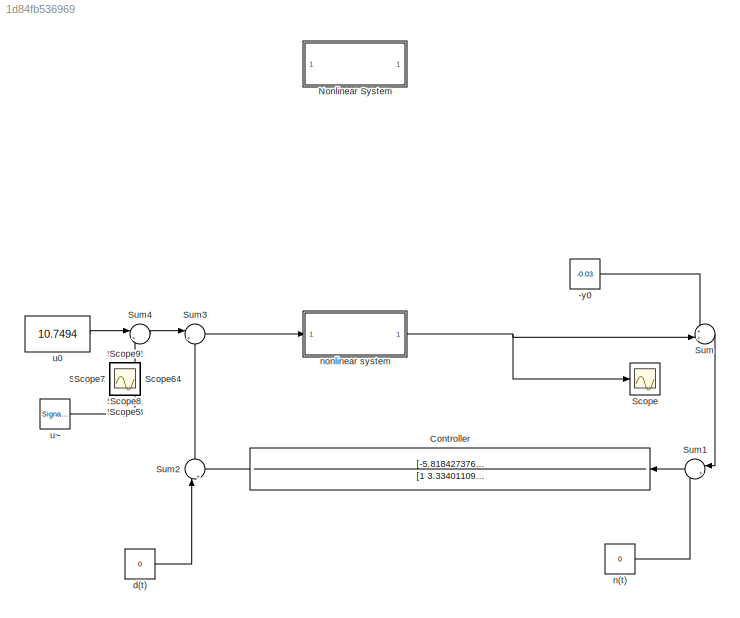
MODEL slx_1d84fb536969
KIND model
CONFIG AbsTol = auto
CONFIG FixedStep = auto
CONFIG MaxStep = auto
CONFIG MinStep = auto
CONFIG RelTol = 1e-3
CONFIG SampleTimeConstraint = Unconstrained
CONFIG Solver = VariableStepAuto
CONFIG SolverMode = Auto
CONFIG SolverName = VariableStepAuto
CONFIG StartTime = 0.0
CONFIG StopTime = 10
BLOCK [Constant] -y0
  Value = -0.03
BLOCK [TransferFcn] Controller
  Denominator = [1 3.334011090573013e+02 5.594060635982519e+04]
  Numerator = [-5.818427376111721e+04 -4.416620014332136e+06 -8.995846425756064e+07]
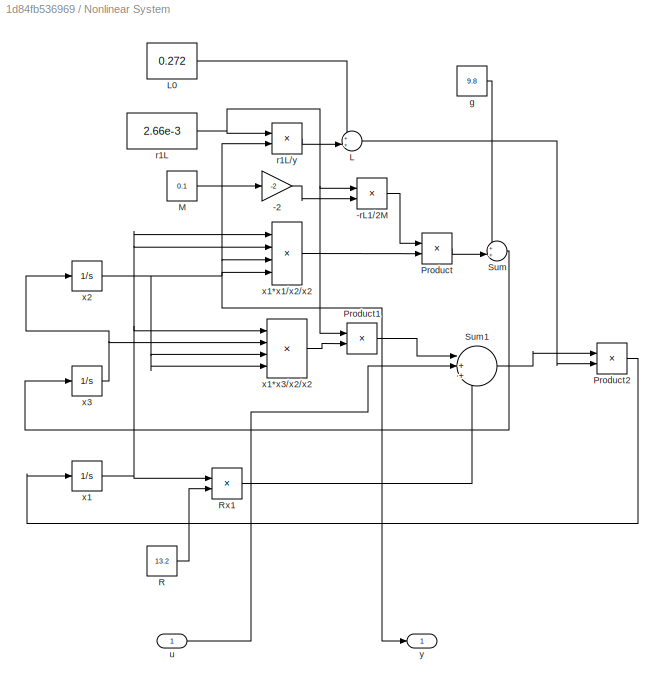
BLOCK [SubSystem] Nonlinear System
  Ports = [1, 1]
  RequestExecContextInheritance = off
  Variant = off
BLOCK [Gain] Nonlinear System/-2
  Gain = -2
  OutDataTypeStr = Inherit: Inherit via internal rule
  ParamDataTypeStr = Inherit: Inherit via internal rule
  SaturateOnIntegerOverflow = off
BLOCK [Product] Nonlinear System/-rL1//2M
  InputSameDT = off
  OutDataTypeStr = Inherit: Inherit via internal rule
  Ports = [2, 1]
  RndMeth = Floor
  SaturateOnIntegerOverflow = off
BLOCK [Sum] Nonlinear System/L
  IconShape = round
  InputSameDT = off
  Inputs = ++|
  OutDataTypeStr = Inherit: Inherit via internal rule
  Ports = [2, 1]
  SaturateOnIntegerOverflow = off
BLOCK [Constant] Nonlinear System/L0
  Value = 0.272
BLOCK [Constant] Nonlinear System/M
  Value = 0.1
BLOCK [Product] Nonlinear System/Product
  InputSameDT = off
  OutDataTypeStr = Inherit: Inherit via internal rule
  Ports = [2, 1]
  RndMeth = Floor
  SaturateOnIntegerOverflow = off
BLOCK [Product] Nonlinear System/Product1
  InputSameDT = off
  OutDataTypeStr = Inherit: Inherit via internal rule
  Ports = [2, 1]
  RndMeth = Floor
  SaturateOnIntegerOverflow = off
BLOCK [Product] Nonlinear System/Product2
  InputSameDT = off
  Inputs = */
  OutDataTypeStr = Inherit: Inherit via internal rule
  Ports = [2, 1]
  RndMeth = Floor
  SaturateOnIntegerOverflow = off
BLOCK [Constant] Nonlinear System/R
  Value = 13.2
BLOCK [Product] Nonlinear System/Rx1
  InputSameDT = off
  OutDataTypeStr = Inherit: Inherit via internal rule
  Ports = [2, 1]
  RndMeth = Floor
  SaturateOnIntegerOverflow = off
BLOCK [Sum] Nonlinear System/Sum
  IconShape = round
  InputSameDT = off
  Inputs = ++|
  OutDataTypeStr = Inherit: Inherit via internal rule
  Ports = [2, 1]
  SaturateOnIntegerOverflow = off
BLOCK [Sum] Nonlinear System/Sum1
  IconShape = round
  InputSameDT = off
  Inputs = |++-
  OutDataTypeStr = Inherit: Inherit via internal rule
  Ports = [3, 1]
  SaturateOnIntegerOverflow = off
BLOCK [Constant] Nonlinear System/g
  Value = 9.8
BLOCK [Constant] Nonlinear System/r1L
  Value = 2.66e-3
BLOCK [Product] Nonlinear System/r1L//y
  InputSameDT = off
  Inputs = */
  OutDataTypeStr = Inherit: Inherit via internal rule
  Ports = [2, 1]
  RndMeth = Floor
  SaturateOnIntegerOverflow = off
BLOCK [Inport] Nonlinear System/u
  IconDisplay = Port number
BLOCK [Integrator] Nonlinear System/x1
  InitialCondition = 0.8143
  Ports = [1, 1]
BLOCK [Product] Nonlinear System/x1*x1//x2//x2
  InputSameDT = off
  Inputs = **//
  OutDataTypeStr = Inherit: Inherit via internal rule
  Ports = [4, 1]
  RndMeth = Floor
  SaturateOnIntegerOverflow = off
BLOCK [Product] Nonlinear System/x1*x3//x2//x2
  InputSameDT = off
  Inputs = **//
  OutDataTypeStr = Inherit: Inherit via internal rule
  Ports = [4, 1]
  RndMeth = Floor
  SaturateOnIntegerOverflow = off
BLOCK [Integrator] Nonlinear System/x2
  InitialCondition = 0.0300
  Ports = [1, 1]
BLOCK [Integrator] Nonlinear System/x3
  Ports = [1, 1]
BLOCK [Outport] Nonlinear System/y
  IconDisplay = Port number
BLOCK [Scope] Scope
  Ports = [1]
  ScopeSpecificationString = Simulink.scopes.TimeScopeBlockCfg('CurrentConfiguration', extmgr.ConfigurationSet(extmgr.Configuration('Core','General UI',true),extmgr.Configuration('Core','Source UI',true),extmgr.Configuration('Sources','WiredSimulink',true),extmgr.Configuration('Visuals','Time Domain',true,'SerializedDisplays',{struct('MinYLimReal','0.02599','MaxYLimReal','0.03378','YLabelReal','','MinYLimMag','0.02599','MaxYL...<+1411ch>
BLOCK [Scope] Scope1
  IOType = viewer
  Ports = []
  ScopeSpecificationString = Simulink.scopes.TimeScopeBlockCfg('CurrentConfiguration', extmgr.ConfigurationSet(extmgr.Configuration('Core','General UI',true),extmgr.Configuration('Core','Source UI',true),extmgr.Configuration('Sources','WiredSimulink',true,'DataLoggingVariableName','ScopeData1'),extmgr.Configuration('Visuals','Time Domain',true,'SerializedDisplays',{struct('MinYLimReal','-11.50808','MaxYLimReal','103.87275','Y...<+1427ch>
BLOCK [Scope] Scope10
  IOType = viewer
  Ports = []
  ScopeSpecificationString = Simulink.scopes.TimeScopeBlockCfg('CurrentConfiguration', extmgr.ConfigurationSet(extmgr.Configuration('Core','General UI',true),extmgr.Configuration('Core','Source UI',true),extmgr.Configuration('Sources','WiredSimulink',true,'DataLoggingVariableName','ScopeData7'),extmgr.Configuration('Visuals','Time Domain',true,'SerializedDisplays',{struct('MinYLimReal','0.26095','MaxYLimReal','0.37175','YLabe...<+1388ch>
BLOCK [Scope] Scope11
  IOType = viewer
  Ports = []
  ScopeSpecificationString = Simulink.scopes.TimeScopeBlockCfg('CurrentConfiguration', extmgr.ConfigurationSet(extmgr.Configuration('Core','General UI',true),extmgr.Configuration('Core','Source UI',true),extmgr.Configuration('Sources','WiredSimulink',true,'DataLoggingVariableName','ScopeData8'),extmgr.Configuration('Visuals','Time Domain',true,'SerializedDisplays',{struct('MinYLimReal','-76.53336','MaxYLimReal','688.80666','Y...<+1402ch>
BLOCK [Scope] Scope12
  IOType = viewer
  Ports = []
  ScopeSpecificationString = Simulink.scopes.TimeScopeBlockCfg('CurrentConfiguration', extmgr.ConfigurationSet(extmgr.Configuration('Core','General UI',true),extmgr.Configuration('Core','Source UI',true),extmgr.Configuration('Sources','WiredSimulink',true,'DataLoggingVariableName','ScopeData9'),extmgr.Configuration('Visuals','Time Domain',true,'SerializedDisplays',{struct('MinYLimReal','-0.32228','MaxYLimReal','1.65595','YLab...<+1411ch>
BLOCK [Scope] Scope13
  IOType = viewer
  Ports = []
  ScopeSpecificationString = Simulink.scopes.TimeScopeBlockCfg('CurrentConfiguration', extmgr.ConfigurationSet(extmgr.Configuration('Core','General UI',true),extmgr.Configuration('Core','Source UI',true),extmgr.Configuration('Sources','WiredSimulink',true,'DataLoggingVariableName','ScopeData10'),extmgr.Configuration('Visuals','Time Domain',true,'SerializedDisplays',{struct('MinYLimReal','-18701.75249','MaxYLimReal','168423.26...<+1425ch>
BLOCK [Scope] Scope14
  IOType = viewer
  Ports = []
  ScopeSpecificationString = Simulink.scopes.TimeScopeBlockCfg('CurrentConfiguration', extmgr.ConfigurationSet(extmgr.Configuration('Core','General UI',true),extmgr.Configuration('Core','Source UI',true),extmgr.Configuration('Sources','WiredSimulink',true,'DataLoggingVariableName','ScopeData11'),extmgr.Configuration('Visuals','Time Domain',true,'SerializedDisplays',{struct('MinYLimReal','-18617.38621','MaxYLimReal','167663.96...<+1425ch>
BLOCK [Scope] Scope2
  IOType = viewer
  Ports = []
  ScopeSpecificationString = Simulink.scopes.TimeScopeBlockCfg('CurrentConfiguration', extmgr.ConfigurationSet(extmgr.Configuration('Core','General UI',true),extmgr.Configuration('Core','Source UI',true),extmgr.Configuration('Sources','WiredSimulink',true,'DataLoggingVariableName','ScopeData2'),extmgr.Configuration('Visuals','Time Domain',true,'SerializedDisplays',{struct('MinYLimReal','-18701.75249','MaxYLimReal','168423.266...<+1393ch>
BLOCK [Scope] Scope3
  IOType = viewer
  Ports = []
  ScopeSpecificationString = Simulink.scopes.TimeScopeBlockCfg('CurrentConfiguration', extmgr.ConfigurationSet(extmgr.Configuration('Core','General UI',true),extmgr.Configuration('Core','Source UI',true),extmgr.Configuration('Sources','WiredSimulink',true,'DataLoggingVariableName','ScopeData3'),extmgr.Configuration('Visuals','Time Domain',true,'SerializedDisplays',{struct('MinYLimReal','-202.61211','MaxYLimReal','77.98079','Y...<+1381ch>
BLOCK [Scope] Scope4
  IOType = viewer
  Ports = []
  ScopeSpecificationString = Simulink.scopes.TimeScopeBlockCfg('CurrentConfiguration', extmgr.ConfigurationSet(extmgr.Configuration('Core','General UI',true),extmgr.Configuration('Core','Source UI',true),extmgr.Configuration('Sources','WiredSimulink',true,'DataLoggingVariableName','ScopeData1'),extmgr.Configuration('Visuals','Time Domain',true,'SerializedDisplays',{struct('MinYLimReal','-0.02273','MaxYLimReal','0.02797','YLab...<+1436ch>
BLOCK [Scope] Scope5
  IOType = viewer
  Ports = []
  ScopeSpecificationString = Simulink.scopes.TimeScopeBlockCfg('CurrentConfiguration', extmgr.ConfigurationSet(extmgr.Configuration('Core','General UI',true),extmgr.Configuration('Core','Source UI',true),extmgr.Configuration('Sources','WiredSimulink',true,'DataLoggingVariableName','ScopeData2'),extmgr.Configuration('Visuals','Time Domain',true,'SerializedDisplays',{struct('MinYLimReal','-130.20929','MaxYLimReal','1171.8836','...<+1446ch>
BLOCK [Scope] Scope6
  IOType = viewer
  Ports = []
  ScopeSpecificationString = Simulink.scopes.TimeScopeBlockCfg('CurrentConfiguration', extmgr.ConfigurationSet(extmgr.Configuration('Core','General UI',true),extmgr.Configuration('Core','Source UI',true),extmgr.Configuration('Sources','WiredSimulink',true,'DataLoggingVariableName','ScopeData3'),extmgr.Configuration('Visuals','Time Domain',true,'SerializedDisplays',{struct('MinYLimReal','-3.38318','MaxYLimReal','3.90265','YLab...<+1432ch>
BLOCK [Scope] Scope7
  IOType = viewer
  Ports = []
  ScopeSpecificationString = Simulink.scopes.TimeScopeBlockCfg('CurrentConfiguration', extmgr.ConfigurationSet(extmgr.Configuration('Core','General UI',true),extmgr.Configuration('Core','Source UI',true),extmgr.Configuration('Sources','WiredSimulink',true,'DataLoggingVariableName','ScopeData4'),extmgr.Configuration('Visuals','Time Domain',true,'SerializedDisplays',{struct('MinYLimReal','-1103.07198','MaxYLimReal','17295.24021...<+1462ch>
BLOCK [Scope] Scope8
  IOType = viewer
  Ports = []
  ScopeSpecificationString = Simulink.scopes.TimeScopeBlockCfg('CurrentConfiguration', extmgr.ConfigurationSet(extmgr.Configuration('Core','General UI',true),extmgr.Configuration('Core','Source UI',true),extmgr.Configuration('Sources','WiredSimulink',true,'DataLoggingVariableName','ScopeData5'),extmgr.Configuration('Visuals','Time Domain',true,'SerializedDisplays',{struct('MinYLimReal','-9.20107','MaxYLimReal','0.58683','YLab...<+1413ch>
BLOCK [Scope] Scope9
  IOType = viewer
  Ports = []
  ScopeSpecificationString = Simulink.scopes.TimeScopeBlockCfg('CurrentConfiguration', extmgr.ConfigurationSet(extmgr.Configuration('Core','General UI',true),extmgr.Configuration('Core','Source UI',true),extmgr.Configuration('Sources','WiredSimulink',true,'DataLoggingVariableName','ScopeData6'),extmgr.Configuration('Visuals','Time Domain',true,'SerializedDisplays',{struct('MinYLimReal','-281.34268','MaxYLimReal','2532.10188',...<+1452ch>
BLOCK [Sum] Sum
  IconShape = round
  InputSameDT = off
  Inputs = ++|
  OutDataTypeStr = Inherit: Inherit via internal rule
  Ports = [2, 1]
  SaturateOnIntegerOverflow = off
BLOCK [Sum] Sum1
  IconShape = round
  InputSameDT = off
  Inputs = |++
  OutDataTypeStr = Inherit: Inherit via internal rule
  Ports = [2, 1]
  SaturateOnIntegerOverflow = off
BLOCK [Sum] Sum2
  IconShape = round
  InputSameDT = off
  Inputs = |+-
  OutDataTypeStr = Inherit: Inherit via internal rule
  Ports = [2, 1]
  SaturateOnIntegerOverflow = off
BLOCK [Sum] Sum3
  IconShape = round
  InputSameDT = off
  Inputs = |++
  OutDataTypeStr = Inherit: Inherit via internal rule
  Ports = [2, 1]
  SaturateOnIntegerOverflow = off
BLOCK [Sum] Sum4
  IconShape = round
  InputSameDT = off
  Inputs = |++
  OutDataTypeStr = Inherit: Inherit via internal rule
  Ports = [2, 1]
  SaturateOnIntegerOverflow = off
BLOCK [Constant] d(t) 
  Value = 0
BLOCK [Constant] n(t) 
  Value = 0
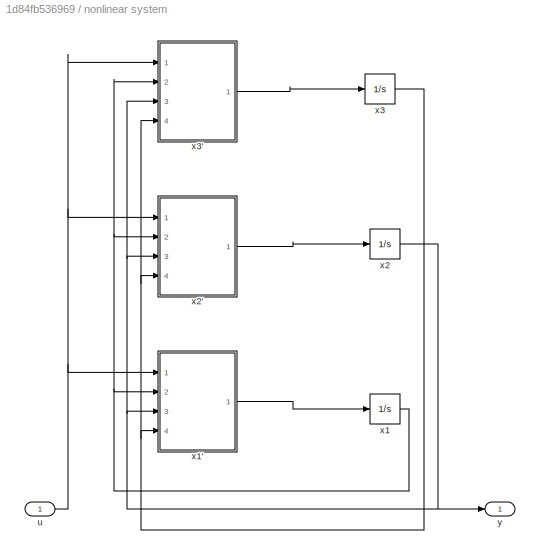
BLOCK [SubSystem] nonlinear system
  Ports = [1, 1]
  RequestExecContextInheritance = off
  Variant = off
BLOCK [Inport] nonlinear system/u
  IconDisplay = Port number
BLOCK [Integrator] nonlinear system/x1
  InitialCondition = 0.84
  Ports = [1, 1]
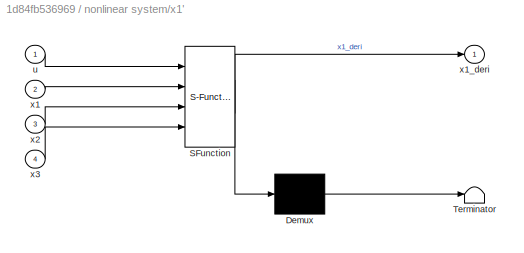
BLOCK [SubSystem] nonlinear system/x1'
  ErrorFcn = Stateflow.Translate.translate
  PermitHierarchicalResolution = ExplicitOnly
  Ports = [4, 1]
  RequestExecContextInheritance = off
  SFBlockType = MATLAB Function
  TreatAsAtomicUnit = on
  Variant = off
BLOCK [Demux] nonlinear system/x1'/ Demux 
  Outputs = 1
  Ports = [1, 1]
BLOCK [S-Function] nonlinear system/x1'/ SFunction 
  EnableBusSupport = on
  FunctionName = sf_sfun
  PortCounts = [4 2]
  Ports = [4, 2]
  SFunctionDeploymentMode = off
  Tag = Stateflow S-Function elec3200lab3 2
BLOCK [Terminator] nonlinear system/x1'/ Terminator 
BLOCK [Inport] nonlinear system/x1'/u
  IconDisplay = Port number
BLOCK [Inport] nonlinear system/x1'/x1
  IconDisplay = Port number
  Port = 2
BLOCK [Outport] nonlinear system/x1'/x1_deri
  IconDisplay = Port number
BLOCK [Inport] nonlinear system/x1'/x2
  IconDisplay = Port number
  Port = 3
BLOCK [Inport] nonlinear system/x1'/x3
  IconDisplay = Port number
  Port = 4
BLOCK [Integrator] nonlinear system/x2
  InitialCondition = 0.03
  Ports = [1, 1]
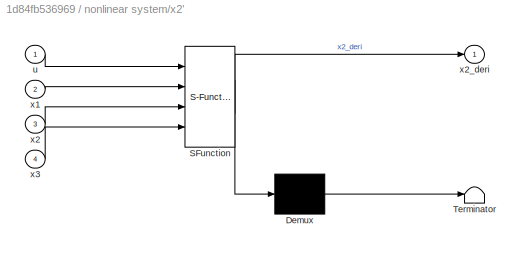
BLOCK [SubSystem] nonlinear system/x2'
  ErrorFcn = Stateflow.Translate.translate
  PermitHierarchicalResolution = ExplicitOnly
  Ports = [4, 1]
  RequestExecContextInheritance = off
  SFBlockType = MATLAB Function
  TreatAsAtomicUnit = on
  Variant = off
BLOCK [Demux] nonlinear system/x2'/ Demux 
  Outputs = 1
  Ports = [1, 1]
BLOCK [S-Function] nonlinear system/x2'/ SFunction 
  EnableBusSupport = on
  FunctionName = sf_sfun
  PortCounts = [4 2]
  Ports = [4, 2]
  SFunctionDeploymentMode = off
  Tag = Stateflow S-Function elec3200lab3 1
BLOCK [Terminator] nonlinear system/x2'/ Terminator 
BLOCK [Inport] nonlinear system/x2'/u
  IconDisplay = Port number
BLOCK [Inport] nonlinear system/x2'/x1
  IconDisplay = Port number
  Port = 2
BLOCK [Inport] nonlinear system/x2'/x2
  IconDisplay = Port number
  Port = 3
BLOCK [Outport] nonlinear system/x2'/x2_deri
  IconDisplay = Port number
BLOCK [Inport] nonlinear system/x2'/x3
  IconDisplay = Port number
  Port = 4
BLOCK [Integrator] nonlinear system/x3
  Ports = [1, 1]
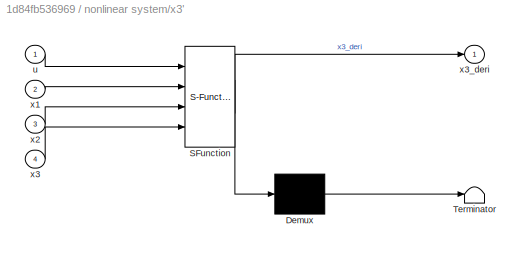
BLOCK [SubSystem] nonlinear system/x3'
  ErrorFcn = Stateflow.Translate.translate
  PermitHierarchicalResolution = ExplicitOnly
  Ports = [4, 1]
  RequestExecContextInheritance = off
  SFBlockType = MATLAB Function
  TreatAsAtomicUnit = on
  Variant = off
BLOCK [Demux] nonlinear system/x3'/ Demux 
  Outputs = 1
  Ports = [1, 1]
BLOCK [S-Function] nonlinear system/x3'/ SFunction 
  EnableBusSupport = on
  FunctionName = sf_sfun
  PortCounts = [4 2]
  Ports = [4, 2]
  SFunctionDeploymentMode = off
  Tag = Stateflow S-Function elec3200lab3 3
BLOCK [Terminator] nonlinear system/x3'/ Terminator 
BLOCK [Inport] nonlinear system/x3'/u
  IconDisplay = Port number
BLOCK [Inport] nonlinear system/x3'/x1
  IconDisplay = Port number
  Port = 2
BLOCK [Inport] nonlinear system/x3'/x2
  IconDisplay = Port number
  Port = 3
BLOCK [Inport] nonlinear system/x3'/x3
  IconDisplay = Port number
  Port = 4
BLOCK [Outport] nonlinear system/x3'/x3_deri
  IconDisplay = Port number
BLOCK [Outport] nonlinear system/y
  IconDisplay = Port number
BLOCK [Constant] u0
  Value = 10.7494
BLOCK [SignalGenerator] u~
  Ports = [0, 1]
  Units = rad/sec
  WaveForm = square
LINE -y0:1 -> Sum:1
LINE Controller:1 -> Sum2:2
LINE Nonlinear System/-2:1 -> Nonlinear System/-rL1//2M:2
LINE Nonlinear System/-rL1//2M:1 -> Nonlinear System/Product:1
LINE Nonlinear System/L0:1 -> Nonlinear System/L:1
LINE Nonlinear System/L:1 -> Nonlinear System/Product2:2
LINE Nonlinear System/M:1 -> Nonlinear System/-2:1
LINE Nonlinear System/Product1:1 -> Nonlinear System/Sum1:1
LINE Nonlinear System/Product2:1 -> Nonlinear System/x1:1
LINE Nonlinear System/Product:1 -> Nonlinear System/Sum:2
LINE Nonlinear System/R:1 -> Nonlinear System/Rx1:2
LINE Nonlinear System/Rx1:1 -> Nonlinear System/Sum1:3
LINE Nonlinear System/Sum1:1 -> Nonlinear System/Product2:1
LINE Nonlinear System/Sum:1 -> Nonlinear System/x3:1
LINE Nonlinear System/g:1 -> Nonlinear System/Sum:1
LINE Nonlinear System/r1L//y:1 -> Nonlinear System/L:2
NET Nonlinear System/r1L:1 -> Nonlinear System/-rL1//2M:1, Nonlinear System/Product1:1, Nonlinear System/r1L//y:1
LINE Nonlinear System/u:1 -> Nonlinear System/Sum1:2
LINE Nonlinear System/x1*x1//x2//x2:1 -> Nonlinear System/Product:2
LINE Nonlinear System/x1*x3//x2//x2:1 -> Nonlinear System/Product1:2
NET Nonlinear System/x1:1 -> Nonlinear System/Rx1:1, Nonlinear System/x1*x1//x2//x2:1, Nonlinear System/x1*x1//x2//x2:2, Nonlinear System/x1*x3//x2//x2:1
NET Nonlinear System/x2:1 -> Nonlinear System/r1L//y:2, Nonlinear System/x1*x1//x2//x2:3, Nonlinear System/x1*x1//x2//x2:4, Nonlinear System/x1*x3//x2//x2:3, Nonlinear System/x1*x3//x2//x2:4, Nonlinear System/y:1
NET Nonlinear System/x3:1 -> Nonlinear System/x1*x3//x2//x2:2, Nonlinear System/x2:1
LINE Sum1:1 -> Controller:1
LINE Sum2:1 -> Sum3:2
LINE Sum3:1 -> nonlinear system:1
LINE Sum4:1 -> Sum3:1
LINE Sum:1 -> Sum1:1
LINE d(t) :1 -> Sum2:1
LINE n(t) :1 -> Sum1:2
NET nonlinear system/u:1 -> nonlinear system/x1':1, nonlinear system/x2':1, nonlinear system/x3':1
LINE nonlinear system/x1':1 -> nonlinear system/x1:1
NET nonlinear system/x1:1 -> nonlinear system/x1':2, nonlinear system/x2':2, nonlinear system/x3':2
LINE nonlinear system/x2':1 -> nonlinear system/x2:1
NET nonlinear system/x2:1 -> nonlinear system/x1':3, nonlinear system/x2':3, nonlinear system/x3':3, nonlinear system/y:1
LINE nonlinear system/x3':1 -> nonlinear system/x3:1
NET nonlinear system/x3:1 -> nonlinear system/x1':4, nonlinear system/x2':4, nonlinear system/x3':4
NET nonlinear system:1 -> Scope:1, Sum:2
LINE u0:1 -> Sum4:1
LINE u~:1 -> Sum4:2
note: NET lines group one-source signal fan-out (src -> all destinations, sorted); 1:1 wires keep LINE
CHART nonlinear system/x2' states=1 transitions=1
  STATE_LABEL 'eML_blk_kernel()'
  STATE_LABEL 'SCRIPT:\nfunction x2_deri  = cal_dx2(u,x1,x2,x3)\ny0 = 0.03;\nL0 = 0.272;\nR = 13.2;\nM = 0.1;\nrL1 = 2.66e-3;\ng = 9.8;\nL = L0 + rL1/x2;\n\nx2_deri = x3;\n'
CHART nonlinear system/x1' states=1 transitions=1
  STATE_LABEL 'eML_blk_kernel()'
  STATE_LABEL 'SCRIPT:\nfunction x1_deri  = cal_dx1(u,x1,x2,x3)\ny0 = 0.03;\nL0 = 0.272;\nR = 13.2;\nM = 0.1;\nrL1 = 2.66e-3;\ng = 9.8;\nL = L0 + rL1/x2;\n\nx1_deri = (u-R*x1+rL1*x1*x3/x2/x2)/L;\n'
CHART nonlinear system/x3' states=1 transitions=1
  STATE_LABEL 'eML_blk_kernel()'
  STATE_LABEL 'SCRIPT:\nfunction x3_deri  = cal_dx3(u,x1,x2,x3)\ny0 = 0.03;\nL0 = 0.272;\nR = 13.2;\nM = 0.1;\nrL1 = 2.66e-3;\ng = 9.8;\nL = L0 + rL1/x2;\n\nx3_deri = -(rL1/2/M)*x1*x1/x2/x2+g;\n'
